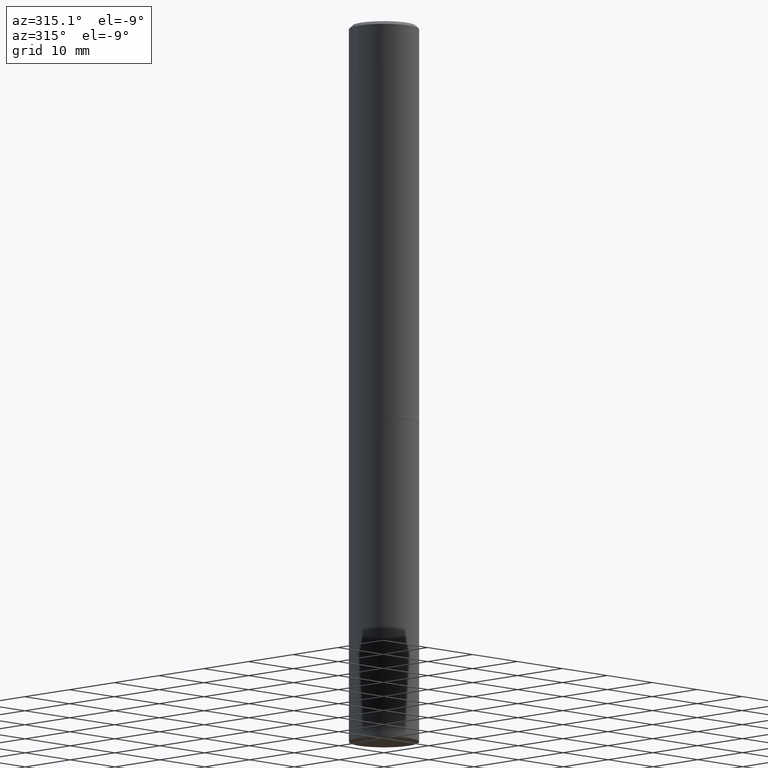
[diagram: clean part render]
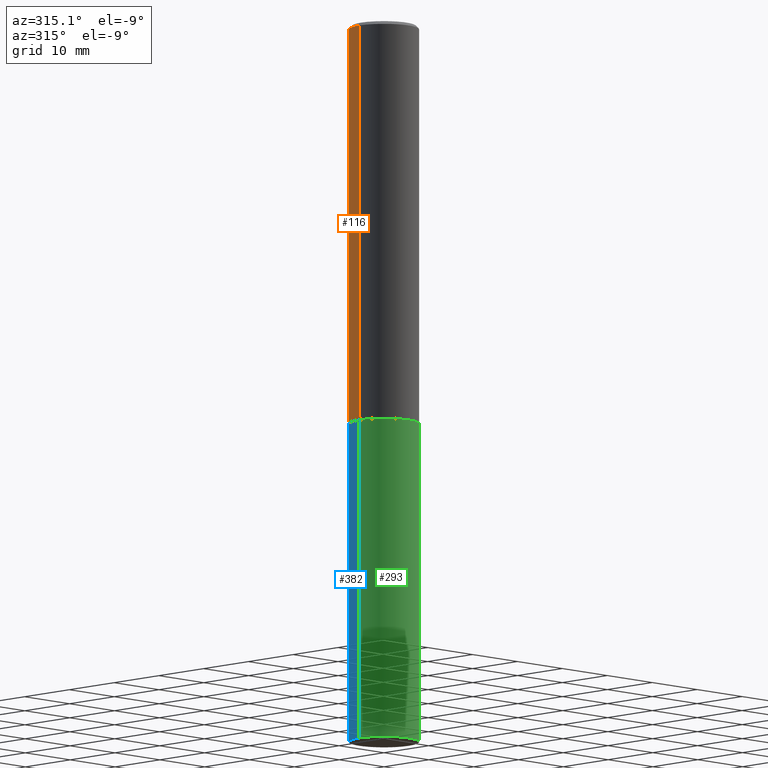
[diagram: same view with three faces highlighted in distinct colors, each labeled with its STEP entity id]
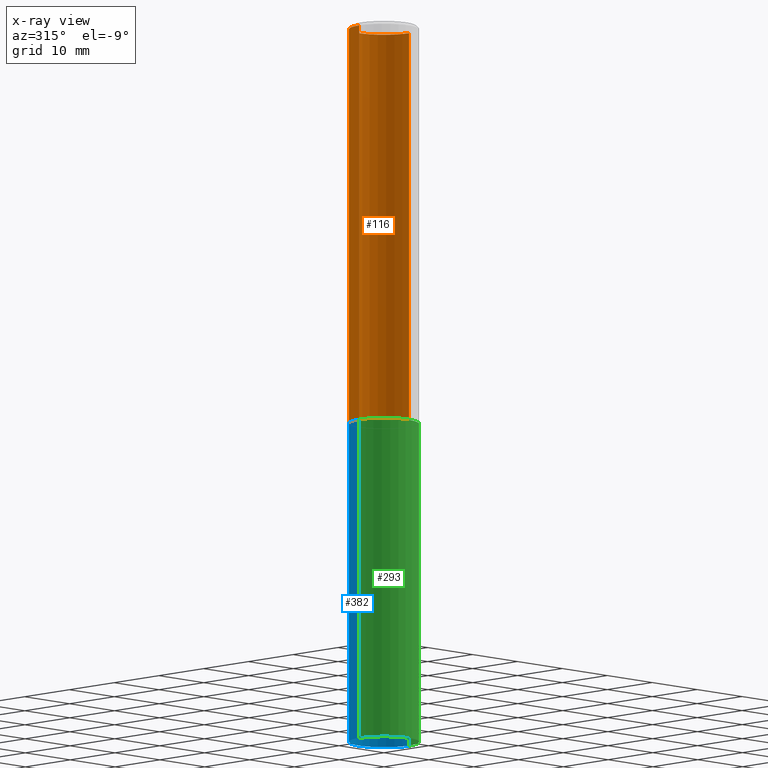
[diagram: x-ray of the same camera — body ghosted, the three highlighted faces saturated]
A machine part, auxiliary view with three faces highlighted in distinct colors.
The next image is the same camera in x-ray (body ghosted, the three faces saturated) — at least one of them is partly hidden behind the body in this view.
Their STEP definitions:

[orange] entity #116 — the highlighted cylindrical surface (edge-blend (fillet) strip) has radius 5.5562 mm, axis along (-0, 0, 1).
#6 = CARTESIAN_POINT ( 'NONE',  ( 0.2187499999999996947, -1.570563563789383264E-15, -0.02000000000000003164 ) ) ;
#25 = CARTESIAN_POINT ( 'NONE',  ( 0.000000000000000000, 0.000000000000000000, 0.000000000000000000 ) ) ;
#35 = VERTEX_POINT ( 'NONE', #179 ) ;
#44 = EDGE_CURVE ( 'NONE', #35, #323, #143, .T. ) ;
#63 = EDGE_CURVE ( 'NONE', #318, #369, #72, .T. ) ;
#67 = ORIENTED_EDGE ( 'NONE', *, *, #334, .F. ) ;
#72 = CIRCLE ( 'NONE', #299, 0.2187499999999996947 ) ;
#83 = CARTESIAN_POINT ( 'NONE',  ( -0.2187499999999998057, 1.554312234475217776E-15, -1.076017050993259781E-29 ) ) ;
#95 = VECTOR ( 'NONE', #333, 39.37007874015748143 ) ;
#105 = DIRECTION ( 'NONE',  ( 1.000000000000000000, -6.982962677686267499E-15, 0.000000000000000000 ) ) ;
#114 = DIRECTION ( 'NONE',  ( 1.000000000000000000, -6.982962677686266711E-15, 4.876176775795936353E-29 ) ) ;
#116 = ADVANCED_FACE ( 'NONE', ( #317 ), #226, .T. ) ;
#143 = CIRCLE ( 'NONE', #324, 0.2187500000000000000 ) ;
#146 = LINE ( 'NONE', #83, #148 ) ;
#148 = VECTOR ( 'NONE', #379, 39.37007874015748143 ) ;
#150 = CARTESIAN_POINT ( 'NONE',  ( 0.2187499999999998057, -1.527523085743869462E-15, 1.066663669705360184E-29 ) ) ;
#158 = LINE ( 'NONE', #150, #95 ) ;
#179 = CARTESIAN_POINT ( 'NONE',  ( 0.2187500000000000000, -1.025273495151289515E-14, -2.499000000000000998 ) ) ;
#189 = CARTESIAN_POINT ( 'NONE',  ( 6.111226546656659252E-29, -8.725211865769023513E-15, -2.499000000000000998 ) ) ;
#208 = CARTESIAN_POINT ( 'NONE',  ( -0.2187499999999996947, 1.457693458967005573E-15, -0.02000000000000003164 ) ) ;
#209 = ORIENTED_EDGE ( 'NONE', *, *, #44, .T. ) ;
#226 = CYLINDRICAL_SURFACE ( 'NONE', #338, 0.2187499999999998057 ) ;
#235 = CARTESIAN_POINT ( 'NONE',  ( -0.2187500000000000278, -2.843208511797721488E-15, -2.499000000000000998 ) ) ;
#246 = DIRECTION ( 'NONE',  ( -2.445468806185136597E-29, 3.491481338843145583E-15, 1.000000000000000000 ) ) ;
#274 = EDGE_LOOP ( 'NONE', ( #209, #325, #284, #67 ) ) ;
#275 = EDGE_CURVE ( 'NONE', #323, #369, #146, .T. ) ;
#281 = CARTESIAN_POINT ( 'NONE',  ( 4.890937612370280165E-31, -6.982962677686301470E-17, -0.02000000000000003164 ) ) ;
#284 = ORIENTED_EDGE ( 'NONE', *, *, #63, .F. ) ;
#299 = AXIS2_PLACEMENT_3D ( 'NONE', #281, #246, #322 ) ;
#313 = DIRECTION ( 'NONE',  ( -2.445468806185136597E-29, 3.491481338843145583E-15, 1.000000000000000000 ) ) ;
#317 = FACE_OUTER_BOUND ( 'NONE', #274, .T. ) ;
#318 = VERTEX_POINT ( 'NONE', #6 ) ;
#322 = DIRECTION ( 'NONE',  ( 1.000000000000000000, -6.982962677686265922E-15, 0.000000000000000000 ) ) ;
#323 = VERTEX_POINT ( 'NONE', #235 ) ;
#324 = AXIS2_PLACEMENT_3D ( 'NONE', #189, #313, #105 ) ;
#325 = ORIENTED_EDGE ( 'NONE', *, *, #275, .T. ) ;
#333 = DIRECTION ( 'NONE',  ( -2.445468806185136877E-29, 3.491481338843145188E-15, 1.000000000000000000 ) ) ;
#334 = EDGE_CURVE ( 'NONE', #35, #318, #158, .T. ) ;
#338 = AXIS2_PLACEMENT_3D ( 'NONE', #25, #384, #114 ) ;
#369 = VERTEX_POINT ( 'NONE', #208 ) ;
#379 = DIRECTION ( 'NONE',  ( -2.445468806185136877E-29, 3.491481338843145188E-15, 1.000000000000000000 ) ) ;
#384 = DIRECTION ( 'NONE',  ( -2.445468806185136597E-29, 3.491481338843145583E-15, 1.000000000000000000 ) ) ;

[blue] entity #382 — the highlighted cylindrical surface (edge-blend (fillet) strip) has radius 5.5562 mm, axis along (-0, 0, 1).
#1 = DIRECTION ( 'NONE',  ( 1.000000000000000000, -6.982962677686266711E-15, 4.876176775795935232E-29 ) ) ;
#4 = EDGE_CURVE ( 'NONE', #151, #165, #33, .T. ) ;
#7 = ORIENTED_EDGE ( 'NONE', *, *, #4, .T. ) ;
#23 = CARTESIAN_POINT ( 'NONE',  ( -0.2187500000000003331, -1.418414293905028211E-14, -4.500000000000000000 ) ) ;
#33 = CIRCLE ( 'NONE', #306, 0.2187500000000000000 ) ;
#34 = LINE ( 'NONE', #117, #133 ) ;
#52 = EDGE_CURVE ( 'NONE', #151, #211, #195, .T. ) ;
#56 = CARTESIAN_POINT ( 'NONE',  ( 0.2187500000000003331, -1.721239996180668100E-14, -4.500000000000000000 ) ) ;
#75 = DIRECTION ( 'NONE',  ( -2.445468806185136877E-29, 3.491481338843145188E-15, 1.000000000000000000 ) ) ;
#92 = ORIENTED_EDGE ( 'NONE', *, *, #320, .T. ) ;
#104 = DIRECTION ( 'NONE',  ( 1.000000000000000000, -6.982962677686262766E-15, 0.000000000000000000 ) ) ;
#117 = CARTESIAN_POINT ( 'NONE',  ( -0.2187500000000000000, 1.554312234475219157E-15, -1.076017050993260622E-29 ) ) ;
#118 = AXIS2_PLACEMENT_3D ( 'NONE', #176, #141, #171 ) ;
#123 = EDGE_CURVE ( 'NONE', #211, #367, #295, .T. ) ;
#132 = ORIENTED_EDGE ( 'NONE', *, *, #52, .F. ) ;
#133 = VECTOR ( 'NONE', #155, 39.37007874015748143 ) ;
#141 = DIRECTION ( 'NONE',  ( -2.445468806185136597E-29, 3.491481338843145583E-15, 1.000000000000000000 ) ) ;
#151 = VERTEX_POINT ( 'NONE', #56 ) ;
#155 = DIRECTION ( 'NONE',  ( -2.445468806185136877E-29, 3.491481338843145188E-15, 1.000000000000000000 ) ) ;
#165 = VERTEX_POINT ( 'NONE', #23 ) ;
#171 = DIRECTION ( 'NONE',  ( 1.000000000000000000, -6.982962677686267499E-15, 0.000000000000000000 ) ) ;
#176 = CARTESIAN_POINT ( 'NONE',  ( 6.113672015462842613E-29, -8.728703347107864943E-15, -2.500000000000000000 ) ) ;
#195 = LINE ( 'NONE', #278, #364 ) ;
#211 = VERTEX_POINT ( 'NONE', #326 ) ;
#212 = CARTESIAN_POINT ( 'NONE',  ( -0.2187500000000000000, -1.066587245147579176E-14, -2.500000000000000000 ) ) ;
#239 = CARTESIAN_POINT ( 'NONE',  ( 0.000000000000000000, 0.000000000000000000, 0.000000000000000000 ) ) ;
#240 = EDGE_LOOP ( 'NONE', ( #7, #92, #374, #132 ) ) ;
#242 = AXIS2_PLACEMENT_3D ( 'NONE', #239, #265, #1 ) ;
#251 = DIRECTION ( 'NONE',  ( -2.445468806185136597E-29, 3.491481338843145583E-15, 1.000000000000000000 ) ) ;
#253 = CARTESIAN_POINT ( 'NONE',  ( 1.100460962783311469E-28, -1.571166602479415690E-14, -4.500000000000000000 ) ) ;
#265 = DIRECTION ( 'NONE',  ( -2.445468806185136597E-29, 3.491481338843145583E-15, 1.000000000000000000 ) ) ;
#278 = CARTESIAN_POINT ( 'NONE',  ( 0.2187500000000000000, -1.527523085743870843E-15, 1.066663669705360885E-29 ) ) ;
#295 = CIRCLE ( 'NONE', #118, 0.2187500000000000000 ) ;
#306 = AXIS2_PLACEMENT_3D ( 'NONE', #253, #251, #104 ) ;
#320 = EDGE_CURVE ( 'NONE', #165, #367, #34, .T. ) ;
#326 = CARTESIAN_POINT ( 'NONE',  ( 0.2187500000000000000, -1.025622643285173500E-14, -2.500000000000000000 ) ) ;
#337 = FACE_OUTER_BOUND ( 'NONE', #240, .T. ) ;
#340 = CYLINDRICAL_SURFACE ( 'NONE', #242, 0.2187500000000000000 ) ;
#364 = VECTOR ( 'NONE', #75, 39.37007874015748143 ) ;
#367 = VERTEX_POINT ( 'NONE', #212 ) ;
#374 = ORIENTED_EDGE ( 'NONE', *, *, #123, .F. ) ;
#382 = ADVANCED_FACE ( 'NONE', ( #337 ), #340, .T. ) ;

[green] entity #293 — the highlighted cylindrical surface (edge-blend (fillet) strip) has radius 5.5562 mm, axis along (-0, 0, 1).
#8 = DIRECTION ( 'NONE',  ( -2.445468806185136597E-29, 3.491481338843145583E-15, 1.000000000000000000 ) ) ;
#23 = CARTESIAN_POINT ( 'NONE',  ( -0.2187500000000003331, -1.418414293905028211E-14, -4.500000000000000000 ) ) ;
#24 = FACE_OUTER_BOUND ( 'NONE', #43, .T. ) ;
#27 = DIRECTION ( 'NONE',  ( -2.445468806185136597E-29, 3.491481338843145583E-15, 1.000000000000000000 ) ) ;
#34 = LINE ( 'NONE', #117, #133 ) ;
#41 = ORIENTED_EDGE ( 'NONE', *, *, #320, .F. ) ;
#43 = EDGE_LOOP ( 'NONE', ( #41, #311, #193, #178 ) ) ;
#52 = EDGE_CURVE ( 'NONE', #151, #211, #195, .T. ) ;
#55 = CARTESIAN_POINT ( 'NONE',  ( 6.113672015462842613E-29, -8.728703347107864943E-15, -2.500000000000000000 ) ) ;
#56 = CARTESIAN_POINT ( 'NONE',  ( 0.2187500000000003331, -1.721239996180668100E-14, -4.500000000000000000 ) ) ;
#75 = DIRECTION ( 'NONE',  ( -2.445468806185136877E-29, 3.491481338843145188E-15, 1.000000000000000000 ) ) ;
#82 = AXIS2_PLACEMENT_3D ( 'NONE', #233, #27, #184 ) ;
#117 = CARTESIAN_POINT ( 'NONE',  ( -0.2187500000000000000, 1.554312234475219157E-15, -1.076017050993260622E-29 ) ) ;
#127 = CIRCLE ( 'NONE', #153, 0.2187500000000000000 ) ;
#133 = VECTOR ( 'NONE', #155, 39.37007874015748143 ) ;
#139 = EDGE_CURVE ( 'NONE', #367, #211, #348, .T. ) ;
#147 = DIRECTION ( 'NONE',  ( 1.000000000000000000, -6.982962677686267499E-15, 0.000000000000000000 ) ) ;
#151 = VERTEX_POINT ( 'NONE', #56 ) ;
#153 = AXIS2_PLACEMENT_3D ( 'NONE', #271, #8, #205 ) ;
#155 = DIRECTION ( 'NONE',  ( -2.445468806185136877E-29, 3.491481338843145188E-15, 1.000000000000000000 ) ) ;
#165 = VERTEX_POINT ( 'NONE', #23 ) ;
#178 = ORIENTED_EDGE ( 'NONE', *, *, #139, .F. ) ;
#184 = DIRECTION ( 'NONE',  ( 1.000000000000000000, -6.982962677686266711E-15, 4.876176775795935232E-29 ) ) ;
#193 = ORIENTED_EDGE ( 'NONE', *, *, #52, .T. ) ;
#195 = LINE ( 'NONE', #278, #364 ) ;
#205 = DIRECTION ( 'NONE',  ( 1.000000000000000000, -6.982962677686262766E-15, 0.000000000000000000 ) ) ;
#211 = VERTEX_POINT ( 'NONE', #326 ) ;
#212 = CARTESIAN_POINT ( 'NONE',  ( -0.2187500000000000000, -1.066587245147579176E-14, -2.500000000000000000 ) ) ;
#233 = CARTESIAN_POINT ( 'NONE',  ( 0.000000000000000000, 0.000000000000000000, 0.000000000000000000 ) ) ;
#271 = CARTESIAN_POINT ( 'NONE',  ( 1.100460962783311469E-28, -1.571166602479415690E-14, -4.500000000000000000 ) ) ;
#278 = CARTESIAN_POINT ( 'NONE',  ( 0.2187500000000000000, -1.527523085743870843E-15, 1.066663669705360885E-29 ) ) ;
#293 = ADVANCED_FACE ( 'NONE', ( #24 ), #386, .T. ) ;
#301 = EDGE_CURVE ( 'NONE', #165, #151, #127, .T. ) ;
#311 = ORIENTED_EDGE ( 'NONE', *, *, #301, .T. ) ;
#315 = AXIS2_PLACEMENT_3D ( 'NONE', #55, #332, #147 ) ;
#320 = EDGE_CURVE ( 'NONE', #165, #367, #34, .T. ) ;
#326 = CARTESIAN_POINT ( 'NONE',  ( 0.2187500000000000000, -1.025622643285173500E-14, -2.500000000000000000 ) ) ;
#332 = DIRECTION ( 'NONE',  ( -2.445468806185136597E-29, 3.491481338843145583E-15, 1.000000000000000000 ) ) ;
#348 = CIRCLE ( 'NONE', #315, 0.2187500000000000000 ) ;
#364 = VECTOR ( 'NONE', #75, 39.37007874015748143 ) ;
#367 = VERTEX_POINT ( 'NONE', #212 ) ;
#386 = CYLINDRICAL_SURFACE ( 'NONE', #82, 0.2187500000000000000 ) ;